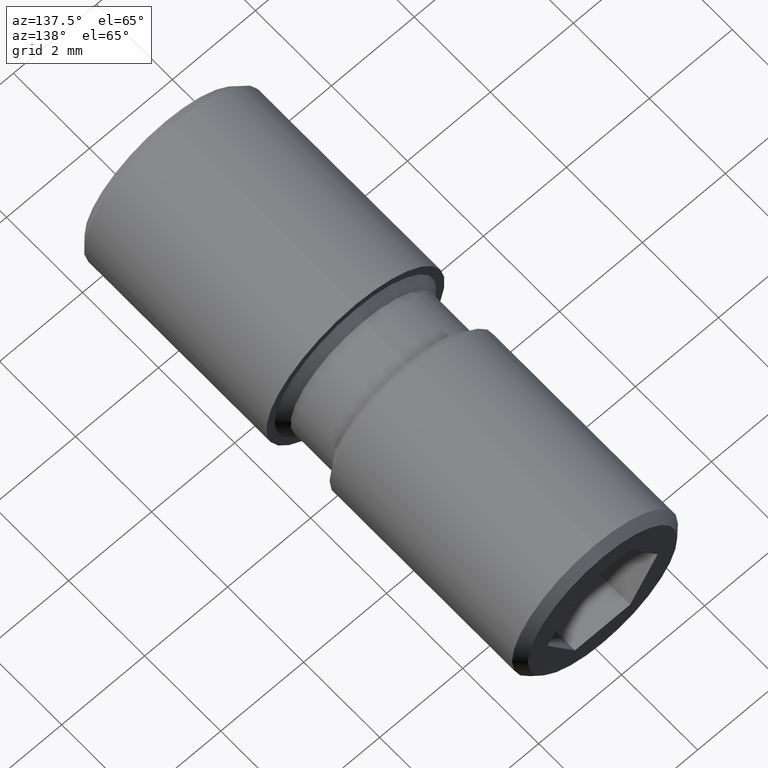
[diagram: clean part render]
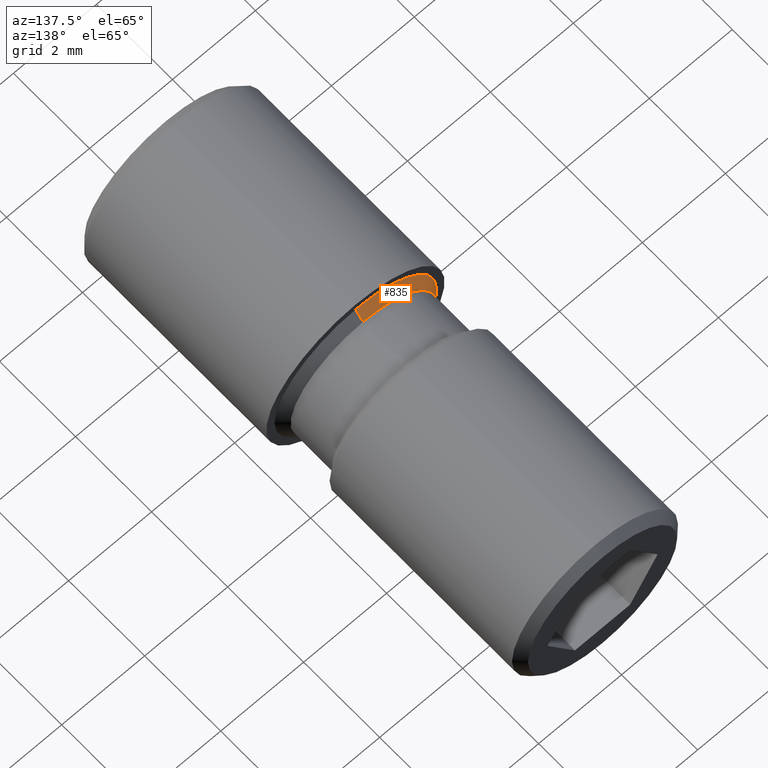
[diagram: same view with one face highlighted and labeled with its STEP entity id]
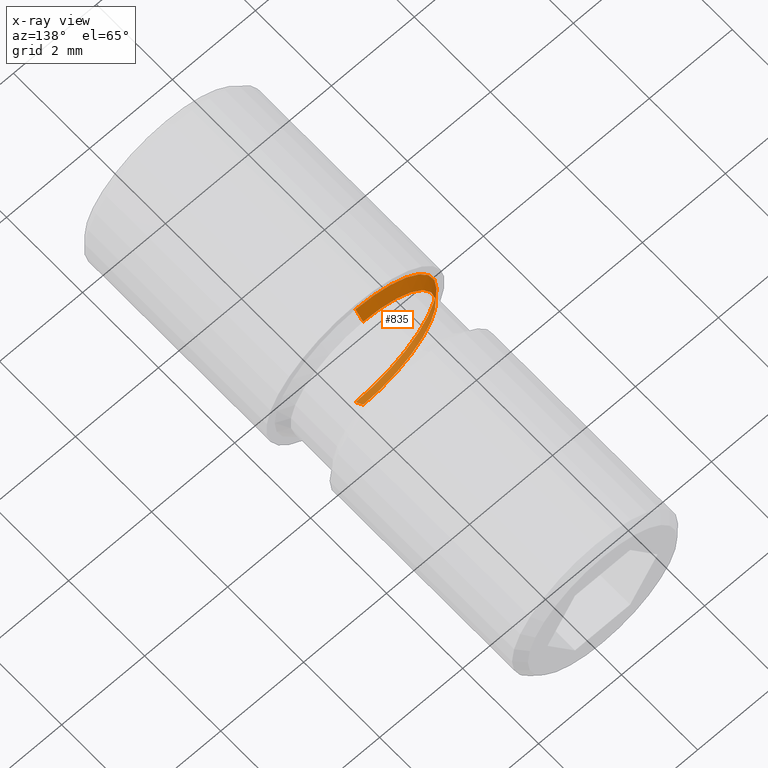
[diagram: x-ray of the same camera — body ghosted, the highlighted face saturated]
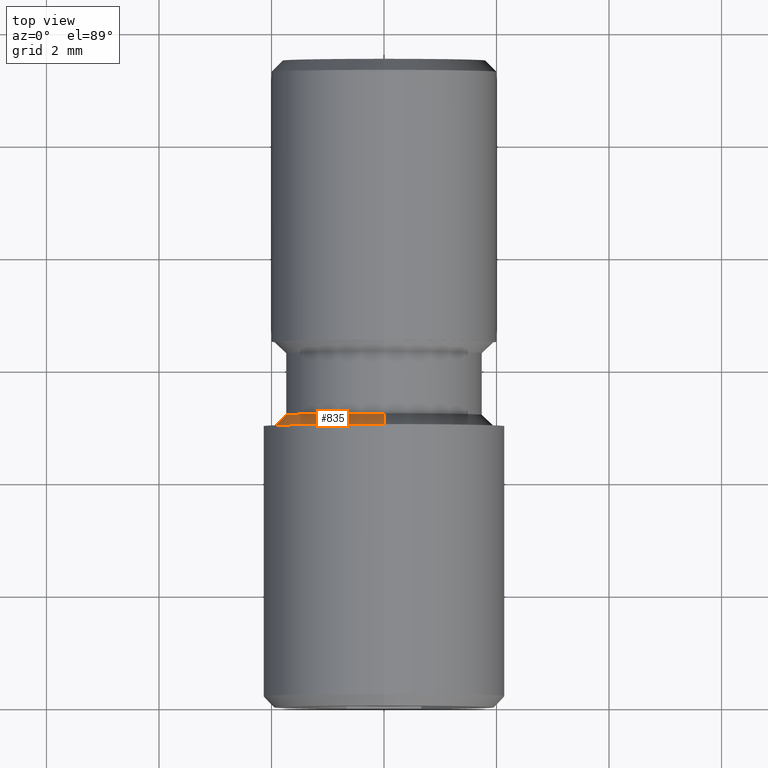
[diagram: same view with one face highlighted and labeled with its STEP entity id]
A machine part, auxiliary view. The second image highlights one B-rep face of the part: STEP entity #835.
The next image is the same camera in x-ray: the body ghosted, the highlighted face saturated — about 38% of this face is hidden behind the body in this view.
A second angle (top view) of the same face is appended — the face is thin or edge-on in the first view.
In plain terms, the highlighted conical surface has half-angle 45 deg.
Its self-contained STEP definition (entity closure, byte-faithful):
#12 = LINE ( 'NONE', #406, #331 ) ;
#24 = DIRECTION ( 'NONE',  ( -0.0000000000000000000, 1.000000000000000000, -0.0000000000000000000 ) ) ;
#26 = DIRECTION ( 'NONE',  ( 8.659560562354909400E-017, -0.7071067811865493500, 0.7071067811865456900 ) ) ;
#66 = VERTEX_POINT ( 'NONE', #383 ) ;
#123 = CONICAL_SURFACE ( 'NONE', #871, 1.750000000000000000, 0.7853981633974456100 ) ;
#148 = EDGE_CURVE ( 'NONE', #640, #232, #12, .T. ) ;
#165 = EDGE_CURVE ( 'NONE', #311, #640, #652, .T. ) ;
#169 = CARTESIAN_POINT ( 'NONE',  ( 2.143131898507868300E-016, 5.200000000000002800, 1.750000000000000000 ) ) ;
#181 = CARTESIAN_POINT ( 'NONE',  ( 0.0000000000000000000, 5.200000000000002800, 0.0000000000000000000 ) ) ;
#231 = AXIS2_PLACEMENT_3D ( 'NONE', #181, #24, #907 ) ;
#232 = VERTEX_POINT ( 'NONE', #901 ) ;
#291 = VECTOR ( 'NONE', #595, 1000.000000000000100 ) ;
#311 = VERTEX_POINT ( 'NONE', #353 ) ;
#320 = AXIS2_PLACEMENT_3D ( 'NONE', #801, #441, #876 ) ;
#331 = VECTOR ( 'NONE', #26, 1000.000000000000100 ) ;
#338 = ORIENTED_EDGE ( 'NONE', *, *, #591, .T. ) ;
#353 = CARTESIAN_POINT ( 'NONE',  ( 0.0000000000000000000, 5.200000000000002800, -1.750000000000000000 ) ) ;
#355 = ORIENTED_EDGE ( 'NONE', *, *, #830, .F. ) ;
#370 = DIRECTION ( 'NONE',  ( 0.0000000000000000000, -1.000000000000000000, 0.0000000000000000000 ) ) ;
#383 = CARTESIAN_POINT ( 'NONE',  ( 0.0000000000000000000, 5.000000000000000000, -1.950000000000002200 ) ) ;
#406 = CARTESIAN_POINT ( 'NONE',  ( 2.143131898507868300E-016, 5.200000000000002800, 1.750000000000000000 ) ) ;
#441 = DIRECTION ( 'NONE',  ( -0.0000000000000000000, -1.000000000000000000, -0.0000000000000000000 ) ) ;
#464 = CARTESIAN_POINT ( 'NONE',  ( 0.0000000000000000000, 5.200000000000002800, -1.750000000000000000 ) ) ;
#478 = ORIENTED_EDGE ( 'NONE', *, *, #165, .F. ) ;
#591 = EDGE_CURVE ( 'NONE', #311, #66, #647, .T. ) ;
#595 = DIRECTION ( 'NONE',  ( 0.0000000000000000000, -0.7071067811865493500, -0.7071067811865456900 ) ) ;
#640 = VERTEX_POINT ( 'NONE', #169 ) ;
#641 = ORIENTED_EDGE ( 'NONE', *, *, #148, .F. ) ;
#647 = LINE ( 'NONE', #464, #291 ) ;
#652 = CIRCLE ( 'NONE', #231, 1.750000000000000000 ) ;
#653 = EDGE_LOOP ( 'NONE', ( #641, #478, #338, #355 ) ) ;
#745 = CIRCLE ( 'NONE', #320, 1.950000000000002200 ) ;
#790 = CARTESIAN_POINT ( 'NONE',  ( 0.0000000000000000000, 5.200000000000002800, 0.0000000000000000000 ) ) ;
#798 = DIRECTION ( 'NONE',  ( 0.0000000000000000000, 0.0000000000000000000, -1.000000000000000000 ) ) ;
#801 = CARTESIAN_POINT ( 'NONE',  ( 0.0000000000000000000, 5.000000000000000000, 0.0000000000000000000 ) ) ;
#830 = EDGE_CURVE ( 'NONE', #232, #66, #745, .T. ) ;
#835 = ADVANCED_FACE ( 'NONE', ( #908 ), #123, .T. ) ;
#871 = AXIS2_PLACEMENT_3D ( 'NONE', #790, #370, #798 ) ;
#876 = DIRECTION ( 'NONE',  ( 0.0000000000000000000, 0.0000000000000000000, 1.000000000000000000 ) ) ;
#901 = CARTESIAN_POINT ( 'NONE',  ( 2.388061258337341600E-016, 5.000000000000000000, 1.950000000000002200 ) ) ;
#907 = DIRECTION ( 'NONE',  ( 0.0000000000000000000, 0.0000000000000000000, 1.000000000000000000 ) ) ;
#908 = FACE_OUTER_BOUND ( 'NONE', #653, .T. ) ;